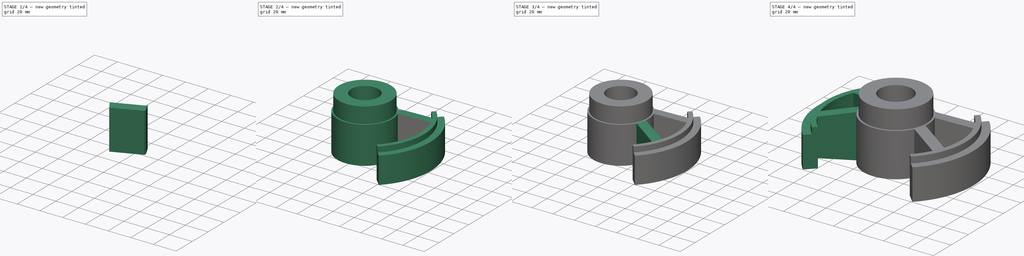
[diagram: build sequence overview — one tinted view per stage of 4, left to right]
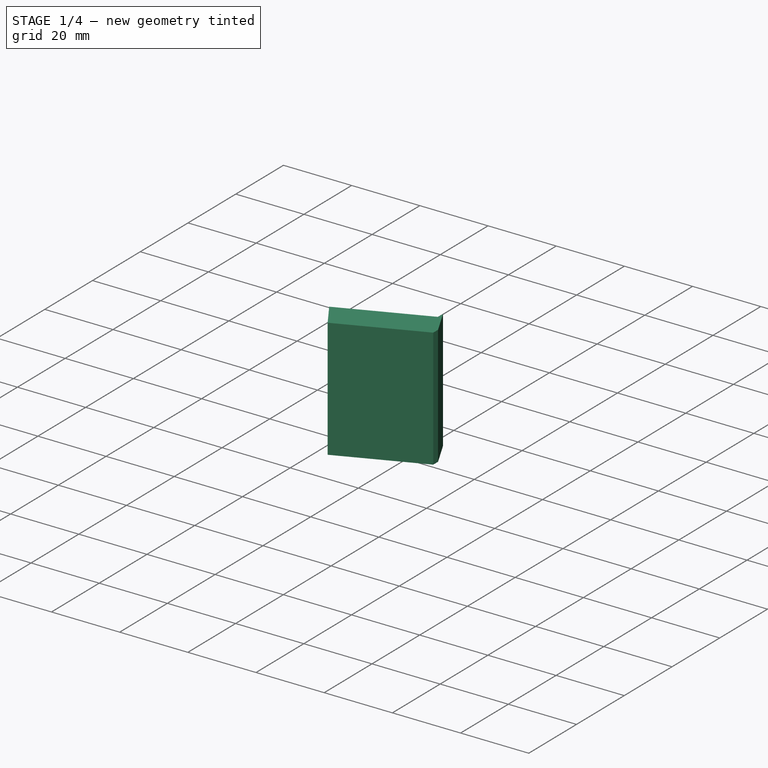
[diagram: stage 1 of 4 — iso view after this stage's code; geometry added in this stage tinted green]
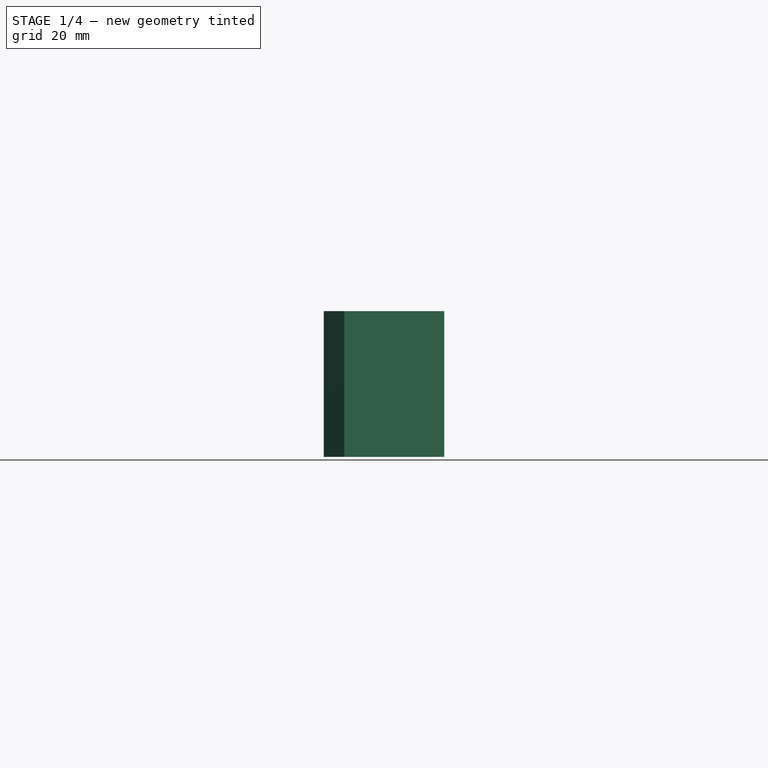
[diagram: stage 1 of 4 — front view after this stage's code; geometry added in this stage tinted green]
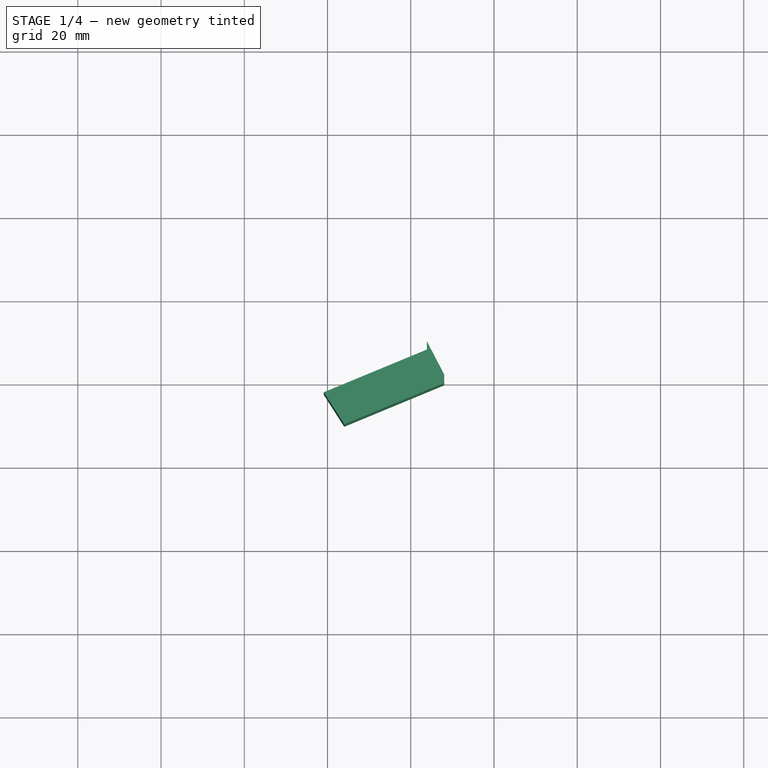
[diagram: stage 1 of 4 — top view after this stage's code; geometry added in this stage tinted green]
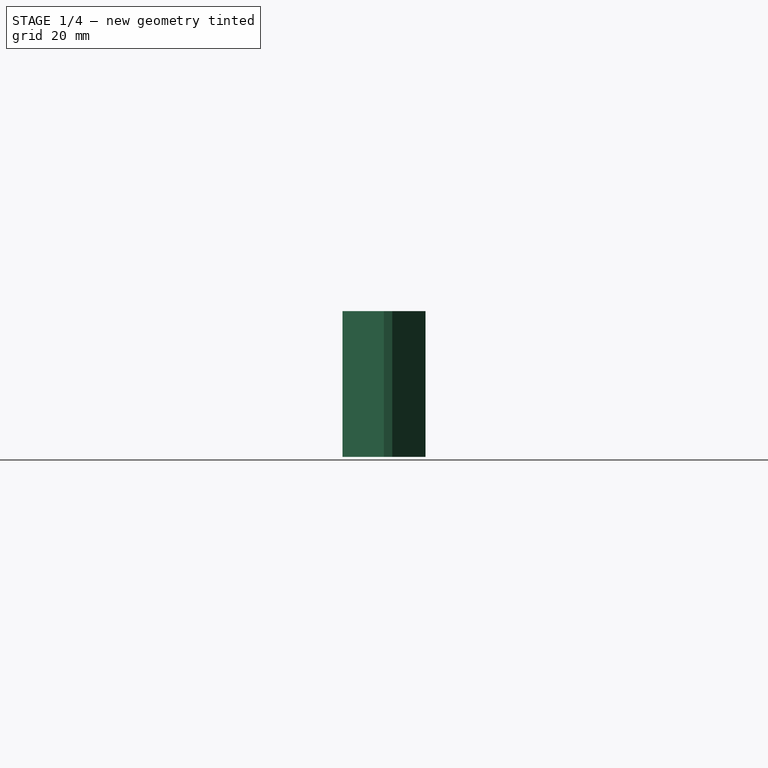
[diagram: stage 1 of 4 — right view after this stage's code; geometry added in this stage tinted green]
FCSTD DOCUMENT  (FreeCAD 0.17R10519 (Git))
Label: 7thExample
License: CreativeCommons Attribution-NonCommercial
LicenseURL: http://creativecommons.org/licenses/by-nc/4.0/
objects: Sketcher::SketchObject×4, PartDesign::Body×3, PartDesign::Revolution×2, PartDesign::Boolean×2, PartDesign::Pad×1, PartDesign::Groove×1, PartDesign::Plane×1, PartDesign::PolarPattern×1, Part::FeaturePython×1, Part::Mirroring×1, PartDesign::FeaturePython×1, App::Part×1
note: 23 computed .brp shape members not serialized (recipe doc carries the construction recipe); baked Part::Feature solids carry a one-line shape summary decoded from their .brp

FEATURE [Sketcher::SketchObject] Sketch
  MapMode = 5
  Placement = pos=(0,0,0) rot=(1,0,0;1.5708rad)
  Support = -> [XZ_Plane001]
  sketch-geometry (6):
    g0: LineSegment StartX=13 StartY=50 StartZ=0 EndX=24.5 EndY=50 EndZ=0
    g1: LineSegment StartX=26 StartY=35 StartZ=0 EndX=26 EndY=0 EndZ=0
    g2: LineSegment StartX=26 StartY=0 StartZ=0 EndX=13 EndY=0 EndZ=0
    g3: LineSegment StartX=13 StartY=0 StartZ=0 EndX=13 EndY=50 EndZ=0
    g4: LineSegment StartX=24.5 StartY=50 StartZ=0 EndX=24.5 EndY=35 EndZ=0
    g5: LineSegment StartX=24.5 StartY=35 StartZ=0 EndX=26 EndY=35 EndZ=0
  constraints (18):
    c: Coincident(g1,g2)
    c: Coincident(g2,g3)
    c: Coincident(g3,g0)
    c: Horizontal(g0)
    c: Horizontal(g2)
    c: Vertical(g1)
    c: Vertical(g3)
    c: Distance(g-1,g1) = 26
    c: Distance(g-1,g0) = 50
    c: PointOnObject(g-1,g2)
    c: Distance(g-1,g3) = 13
    c: Coincident(g4,g5)
    c: Horizontal(g5)
    c: Vertical(g4)
    c: Coincident(g0,g4)
    c: Coincident(g1,g5)
    c: Distance(g-1,g4) = 24.5
    c: Distance(g4) = 15
FEATURE [PartDesign::Revolution] Revolution
  Angle = 360
  Axis = (0,0,1)
  Base = (0,0,0)
  Placement = pos=(0,0,0) rot=(1,0,0;1.5708rad)
  Profile = -> Sketch
  ReferenceAxis = -> Sketch [V_Axis]
  Reversed = true
FEATURE [Sketcher::SketchObject] Sketch001
  ExternalGeometry = -> [Revolution]
  MapMode = 5
  Support = -> [XY_Plane002]
  sketch-geometry (7):
    g0: LineSegment StartX=19.0917 StartY=17.6496 StartZ=0 EndX=43.8726 EndY=27.9141 EndZ=0
    g1: LineSegment StartX=48.0417 StartY=19.8995 StartZ=0 EndX=24.0209 EndY=9.94977 EndZ=0
    g2: LineSegment StartX=24.0209 StartY=9.94977 StartZ=0 EndX=19.0917 EndY=17.6496 EndZ=0
    g3: Circle [constr] CenterX=0 CenterY=0 CenterZ=0 NormalX=0 NormalY=0 NormalZ=1 Radius=52
    g4: LineSegment StartX=43.8726 StartY=29.9141 StartZ=0 EndX=48.0417 EndY=21.8995 EndZ=0
    g5: LineSegment StartX=48.0417 StartY=21.8995 StartZ=0 EndX=48.0417 EndY=19.8995 EndZ=0
    g6: LineSegment StartX=43.8726 StartY=27.9141 StartZ=0 EndX=43.8726 EndY=29.9141 EndZ=0
  constraints (20):
    c: Coincident(g1,g2)
    c: Coincident(g2,g0)
    c: Parallel(g1,g0)
    c: Angle(g-1,g1) = 0.392699
    c: Coincident(g3,g-1)
    c: PointOnObject(g0,g3)
    c: PointOnObject(g1,g3)
    c: Radius(g3) = 52
    c: PointOnObject(g-1,g1)
    c: Distance(g0,g1) = 9
    c: PointOnObject(g0,g-3)
    c: PointOnObject(g1,g-3)
    c: Coincident(g4,g5)
    c: Coincident(g6,g4)
    c: Vertical(g5)
    c: Vertical(g6)
    c: Coincident(g0,g6)
    c: Coincident(g1,g5)
    c: Equal(g6,g5)
    c: Distance(g5) = 2
FEATURE [PartDesign::Pad] Pad
  Length = 35
  Length2 = 100
  Profile = -> Sketch001
  Type = 0
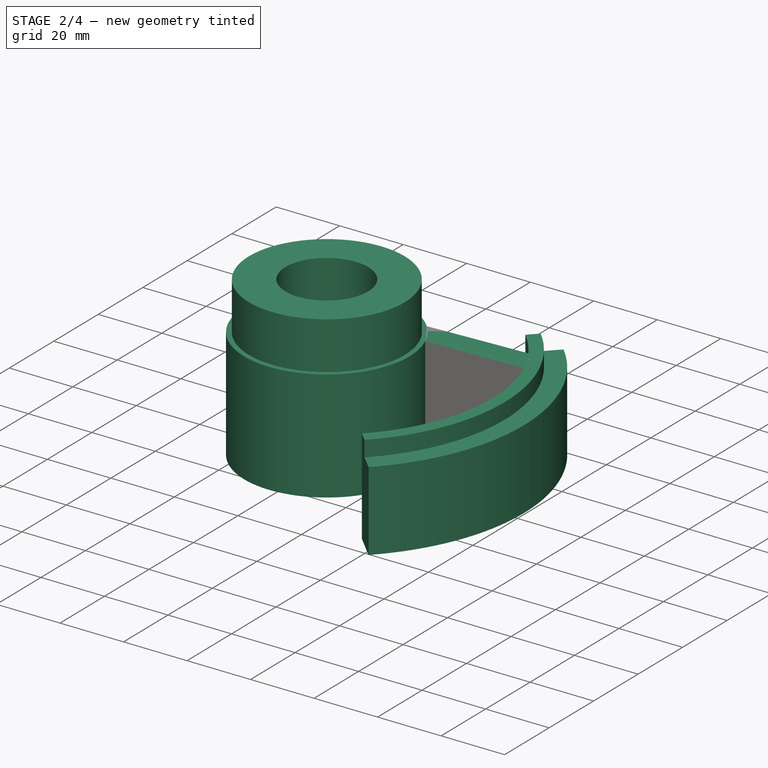
[diagram: stage 2 of 4 — iso view after this stage's code; geometry added in this stage tinted green]
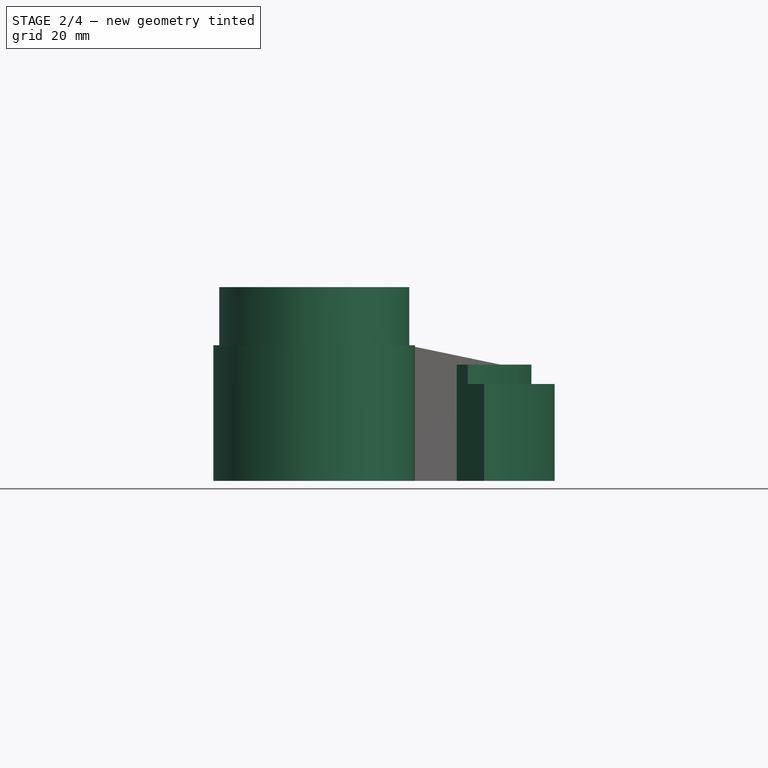
[diagram: stage 2 of 4 — front view after this stage's code; geometry added in this stage tinted green]
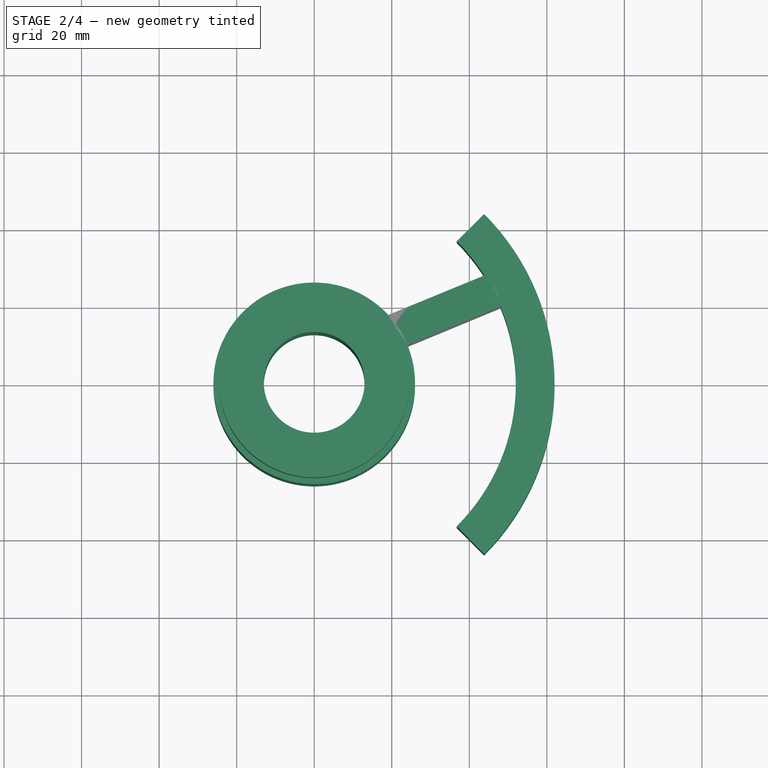
[diagram: stage 2 of 4 — top view after this stage's code; geometry added in this stage tinted green]
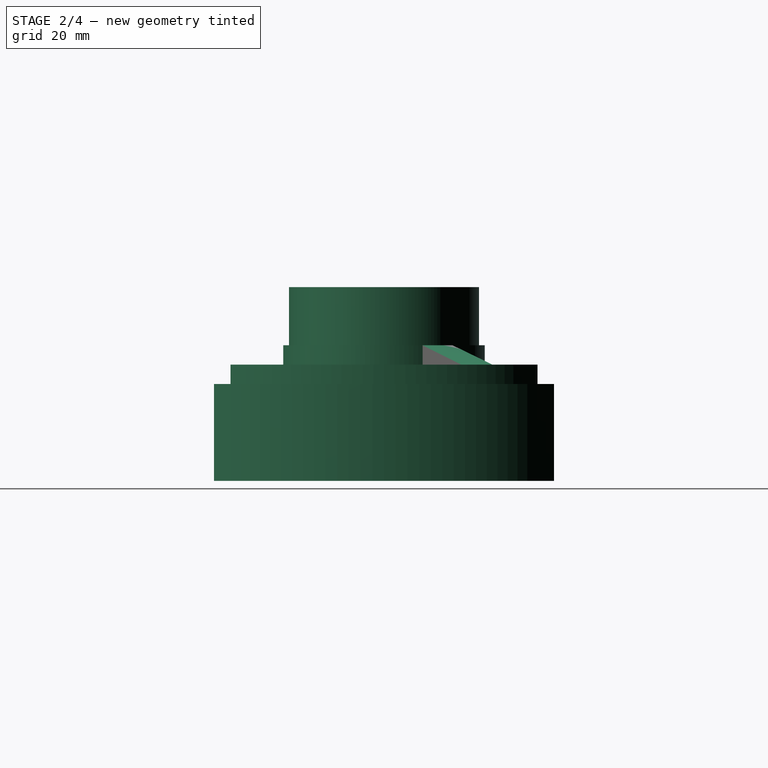
[diagram: stage 2 of 4 — right view after this stage's code; geometry added in this stage tinted green]
FEATURE [Sketcher::SketchObject] Sketch002
  ExternalGeometry = -> [Pad]
  MapMode = 5
  Placement = pos=(0,0,0) rot=(1,0,0;1.5708rad)
  Support = -> [XZ_Plane002]
  sketch-geometry (5):
    g0: LineSegment StartX=26 StartY=35 StartZ=0 EndX=52 EndY=30 EndZ=0
    g1: LineSegment StartX=56.5 StartY=30 StartZ=0 EndX=57.9136 EndY=37.3505 EndZ=0
    g2: LineSegment StartX=57.9136 StartY=37.3505 StartZ=0 EndX=26 EndY=35 EndZ=0
    g3: GeomPoint [constr] X=52 Y=30 Z=0
    g4: LineSegment StartX=52 StartY=30 StartZ=0 EndX=56.5 EndY=30 EndZ=0
  constraints (13):
    c: Coincident(g1,g2)
    c: Coincident(g2,g0)
    c: DistanceX(g-2,g0) = 26
    c: DistanceY(g-1,g0) = 35
    c: Distance(g2) = 32
    c: Perpendicular(g0,g1)
    c: DistanceY(g-1,g3) = 30
    c: Horizontal(g4)
    c: Coincident(g0,g4)
    c: Coincident(g1,g4)
    c: Coincident(g0,g3)
    c: Distance(g4) = 4.5
    c: DistanceX(g-2,g0) = 52
FEATURE [PartDesign::Groove] Groove
  Angle = 360
  Axis = (0,0,1)
  Base = (0,0,0)
  BaseFeature = -> Pad
  Profile = -> Sketch002
  ReferenceAxis = -> Sketch002 [V_Axis]
FEATURE [PartDesign::Plane] DatumPlane
  Placement = pos=(-8.6e-11,2.08e-10,0) rot=(0.962637,0.19148,0.19148;1.60887rad)
  Support = -> [Groove]
  superPlacement = pos=(0,0,-4.5) rot=(0,0,1;0rad)
FEATURE [PartDesign::Body] Body001  label="Radius"
  Group = -> [Sketch001,Pad,Sketch002,Groove,DatumPlane]
  Origin = -> Body001Origin
  Tip = -> Groove
FEATURE [Sketcher::SketchObject] Sketch003
  MapMode = 5
  Placement = pos=(0,0,0) rot=(1,0,0;1.5708rad)
  Support = -> [XZ_Plane003]
  sketch-geometry (6):
    g0: LineSegment StartX=52 StartY=30 StartZ=0 EndX=56 EndY=30 EndZ=0
    g1: LineSegment StartX=62 StartY=25 StartZ=0 EndX=62 EndY=0 EndZ=0
    g2: LineSegment StartX=62 StartY=0 StartZ=0 EndX=52 EndY=0 EndZ=0
    g3: LineSegment StartX=52 StartY=0 StartZ=0 EndX=52 EndY=30 EndZ=0
    g4: LineSegment StartX=62 StartY=25 StartZ=0 EndX=56 EndY=25 EndZ=0
    g5: LineSegment StartX=56 StartY=25 StartZ=0 EndX=56 EndY=30 EndZ=0
  constraints (18):
    c: Coincident(g1,g2)
    c: Coincident(g2,g3)
    c: Coincident(g3,g0)
    c: Horizontal(g0)
    c: Horizontal(g2)
    c: Vertical(g1)
    c: Vertical(g3)
    c: Coincident(g4,g5)
    c: Horizontal(g4)
    c: Vertical(g5)
    c: Coincident(g5,g0)
    c: Coincident(g4,g1)
    c: PointOnObject(g1,g-1)
    c: Distance(g1) = 25
    c: Distance(g3) = 30
    c: Distance(g-1,g1) = 62
    c: Distance(g-1,g3) = 52
    c: Distance(g0) = 4
FEATURE [PartDesign::Revolution] Revolution001
  Angle = 90
  Axis = (0,0,1)
  Base = (0,0,0)
  Midplane = true
  Placement = pos=(0,0,0) rot=(1,0,0;1.5708rad)
  Profile = -> Sketch003
  ReferenceAxis = -> Sketch003 [V_Axis]
  Reversed = true
FEATURE [PartDesign::Body] Body002  label="externe"
  Group = -> [Sketch003,Revolution001]
  Origin = -> Body002Origin
  Tip = -> Revolution001
FEATURE [PartDesign::Boolean] Boolean
  BaseFeature = -> Revolution
  Bodies = -> [Body001]
  Type = 0
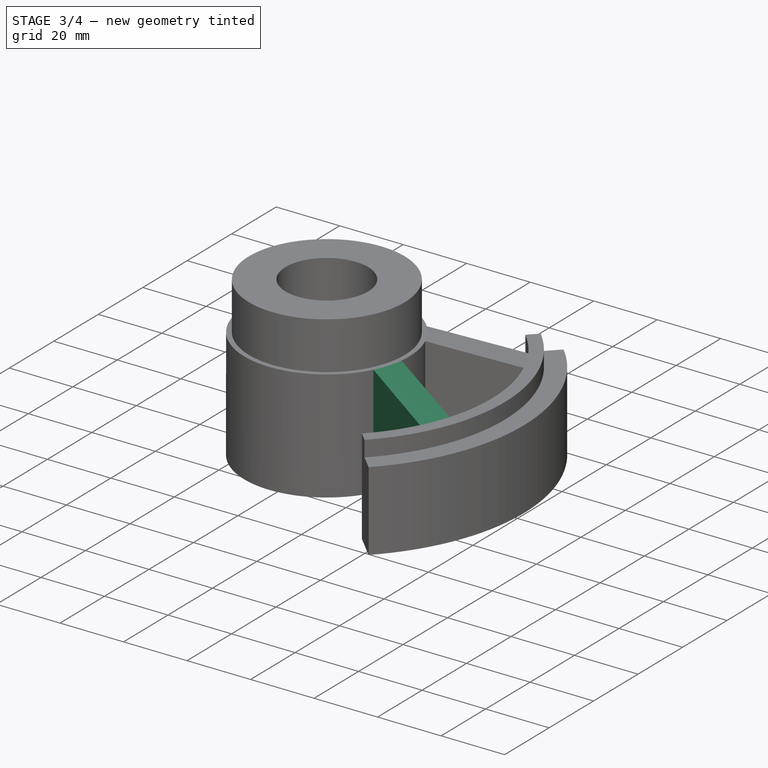
[diagram: stage 3 of 4 — iso view after this stage's code; geometry added in this stage tinted green]
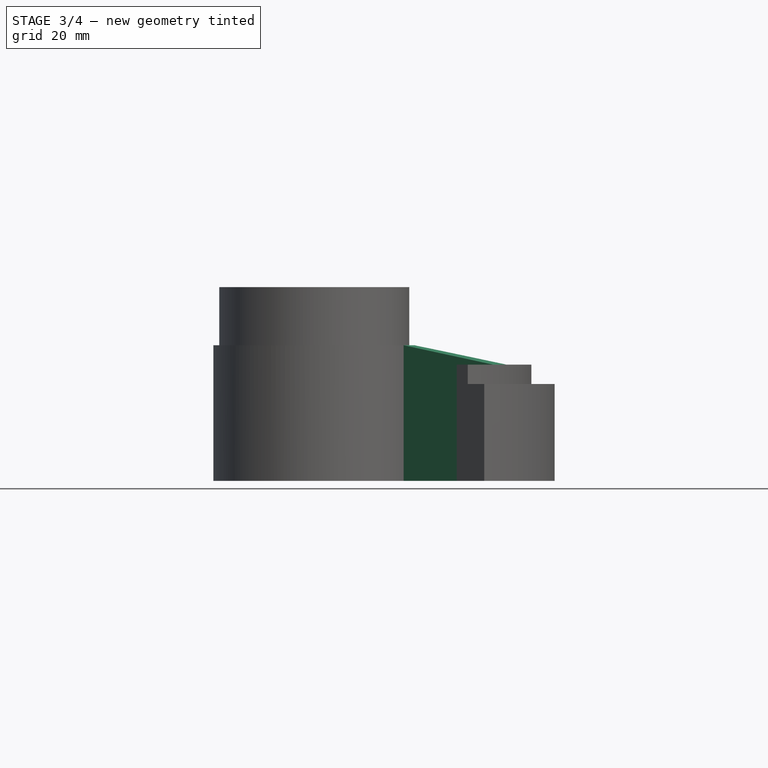
[diagram: stage 3 of 4 — front view after this stage's code; geometry added in this stage tinted green]
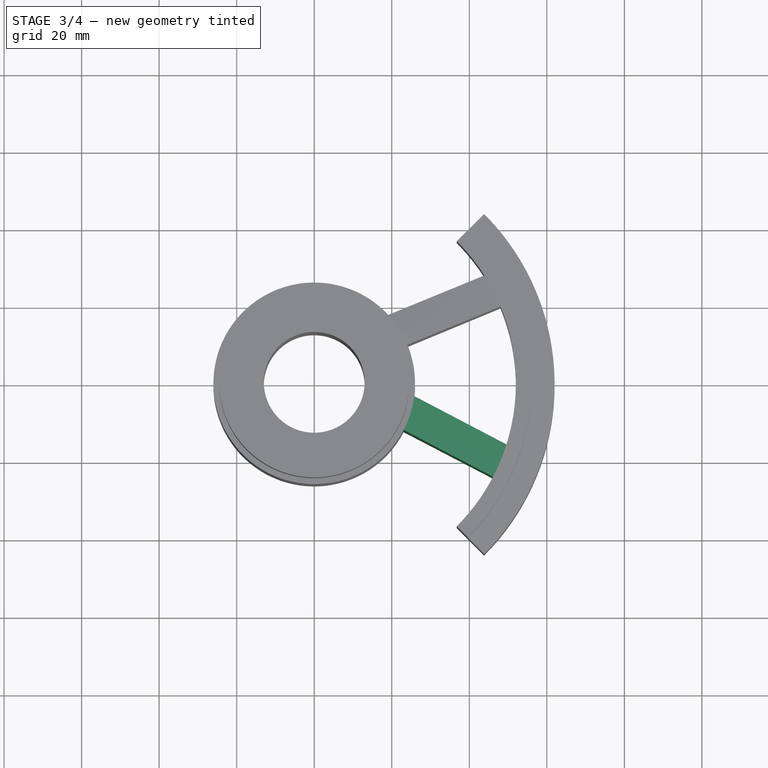
[diagram: stage 3 of 4 — top view after this stage's code; geometry added in this stage tinted green]
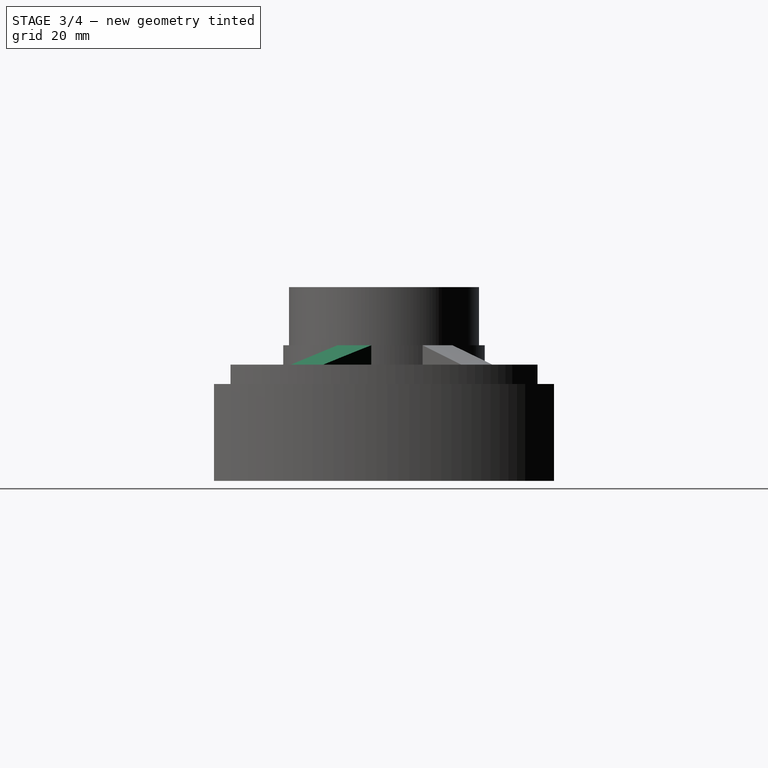
[diagram: stage 3 of 4 — right view after this stage's code; geometry added in this stage tinted green]
FEATURE [PartDesign::Boolean] Boolean001
  BaseFeature = -> Boolean
  Bodies = -> [Body002]
  Type = 0
FEATURE [PartDesign::PolarPattern] PolarPattern
  Angle = 50
  Axis = -> Sketch001 [N_Axis]
  BaseFeature = -> Boolean001
  Occurrences = 2
  Originals = -> [Pad,Groove]
  Reversed = true
FEATURE [Part::FeaturePython] Clone001  label="Clone of PolarPattern001"  # Draft clone (typed FeaturePython)
  AttacherType = Attacher::AttachEngine3D
  Objects = -> [PolarPattern]
  Scale = (1,1,1)
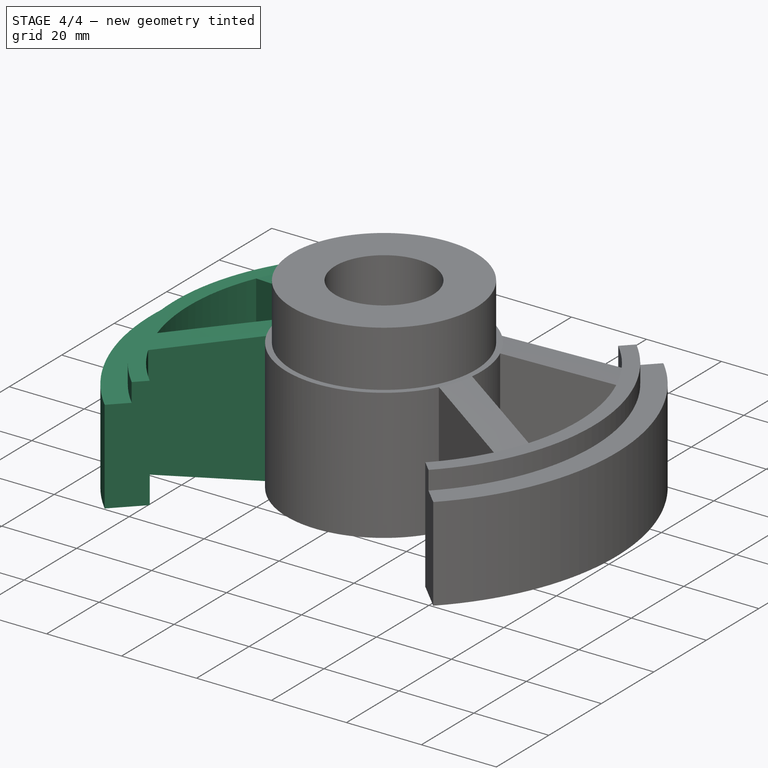
[diagram: stage 4 of 4 — iso view after this stage's code; geometry added in this stage tinted green]
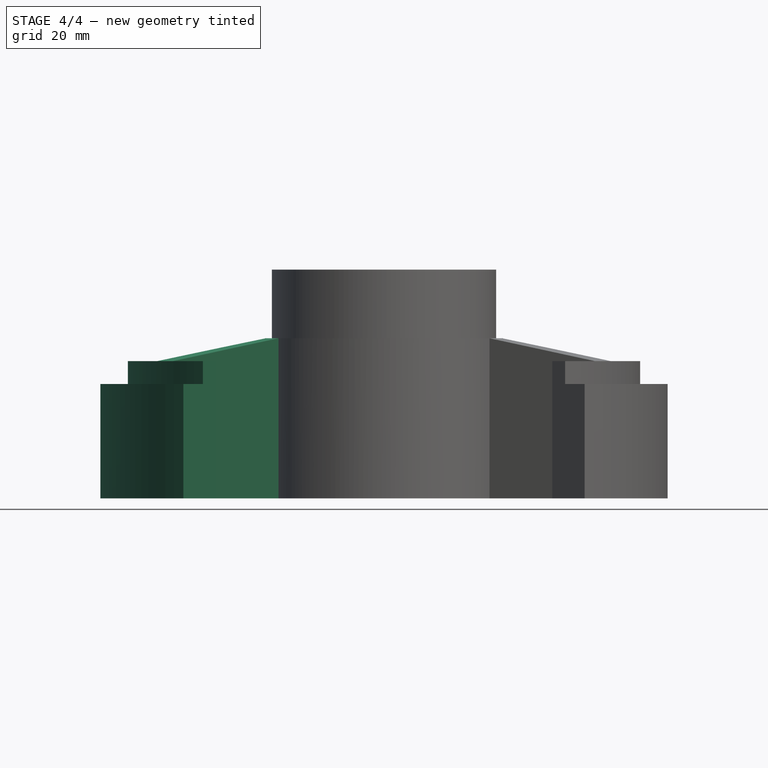
[diagram: stage 4 of 4 — front view after this stage's code; geometry added in this stage tinted green]
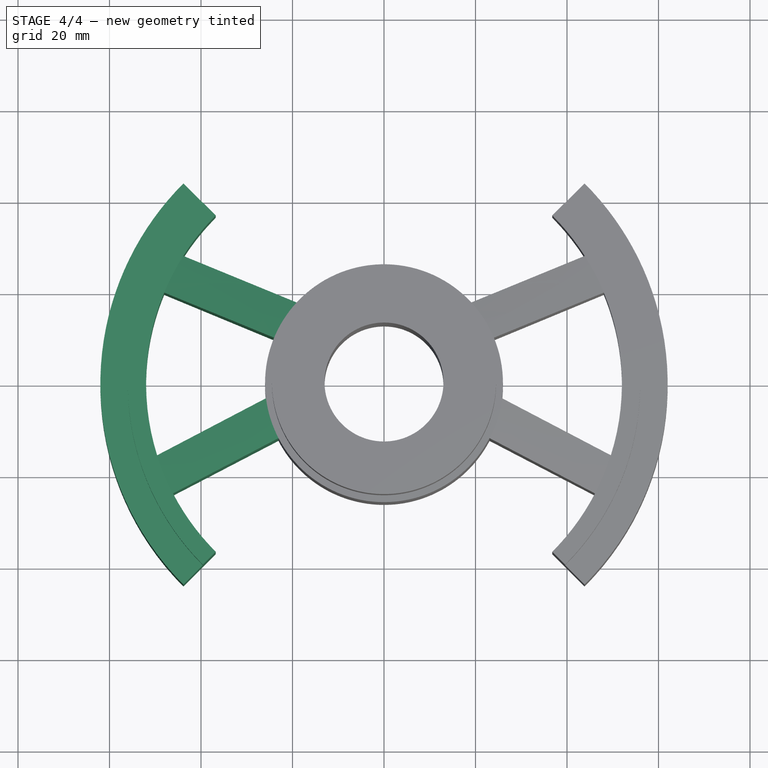
[diagram: stage 4 of 4 — top view after this stage's code; geometry added in this stage tinted green]
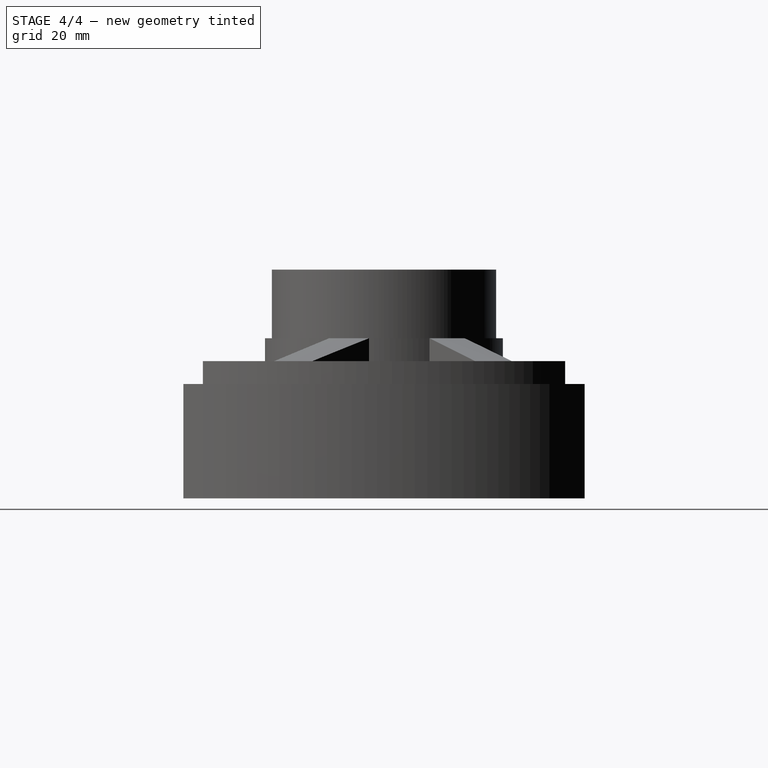
[diagram: stage 4 of 4 — right view after this stage's code; geometry added in this stage tinted green]
FEATURE [Part::Mirroring] Part__Mirroring  label="Clone of PolarPattern001 (Mirror #1)"
  Base = (0,0,0)
  Normal = (1,0,0)
  Source = -> Clone001
FEATURE [PartDesign::FeaturePython] AdditiveShape  # WARN: FeaturePython — macro-defined, semantics opaque (R4)
  AddSubType = 0
  BaseFeature = -> PolarPattern
  Group = -> [Clone001,Part__Mirroring]
  Tip = -> Part__Mirroring
FEATURE [PartDesign::Body] Body  label="center"
  Group = -> [Sketch,Revolution,Boolean,Boolean001,PolarPattern,AdditiveShape]
  Origin = -> BodyOrigin
  Tip = -> AdditiveShape
FEATURE [App::Part] Part
  Group = -> [Body,Body001,Body002]
  License = CC BY 3.0
  LicenseURL = http://creativecommons.org/licenses/by/3.0/
  Origin = -> PartOrigin
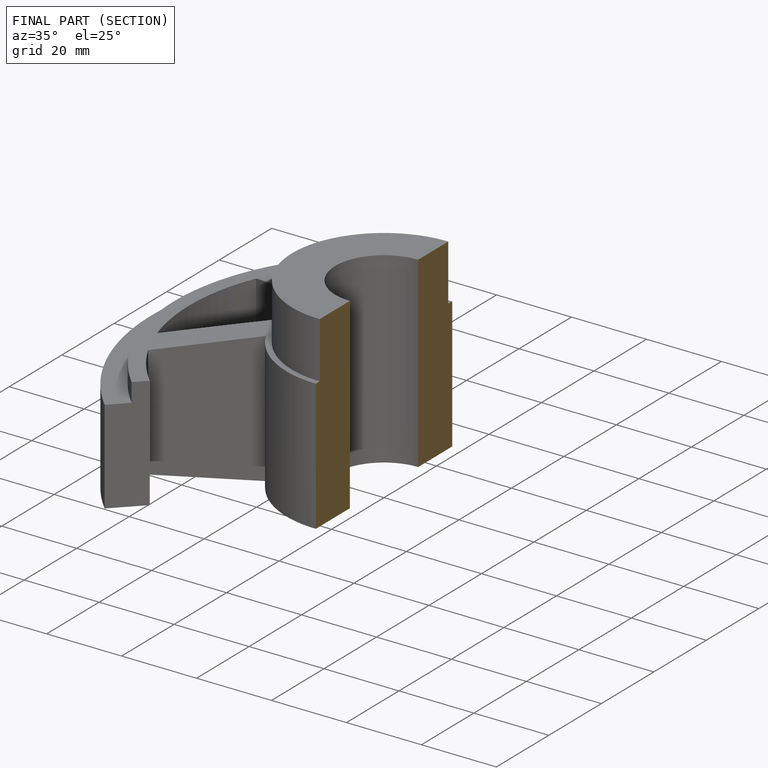
[diagram: finished part — half-section view (interior)]
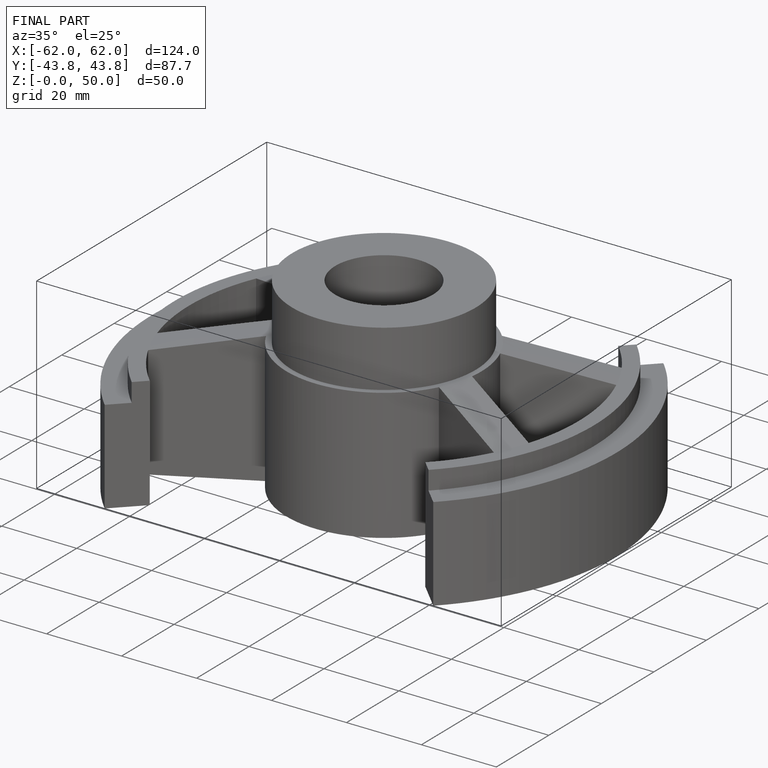
[diagram: finished part — iso view with bounding-box wireframe]
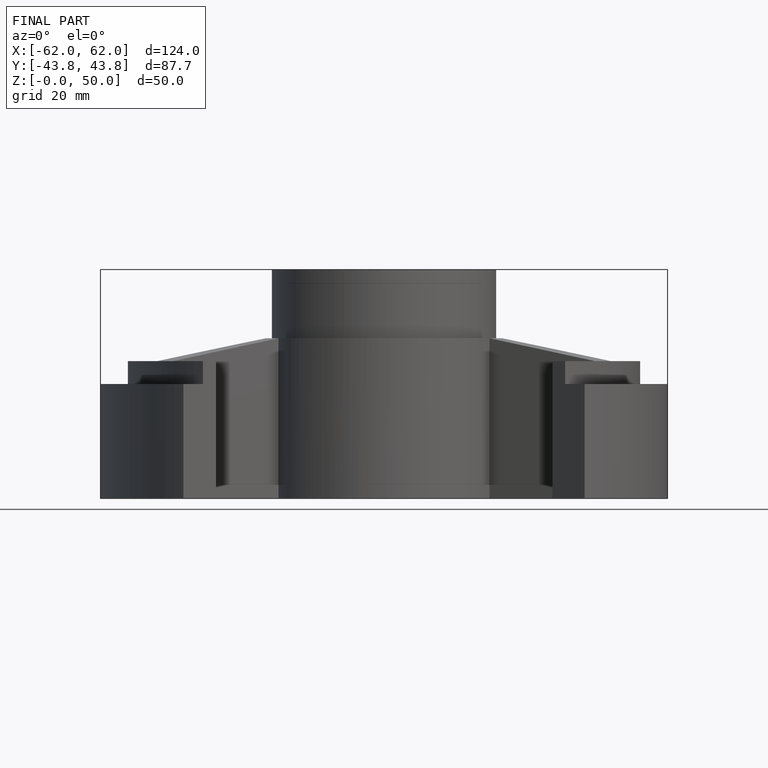
[diagram: finished part — front view with bounding-box wireframe]
